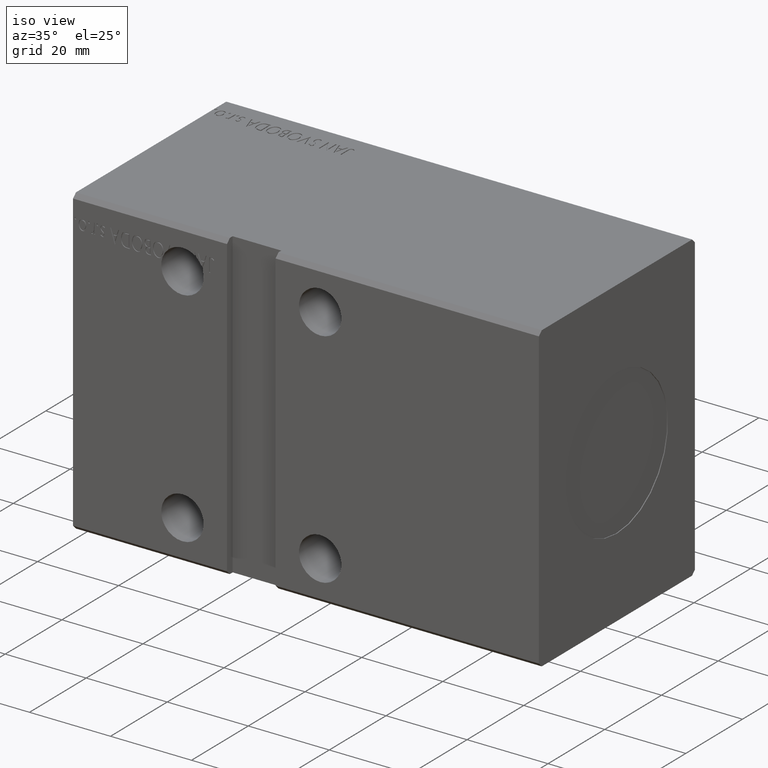
[diagram: clean part render]
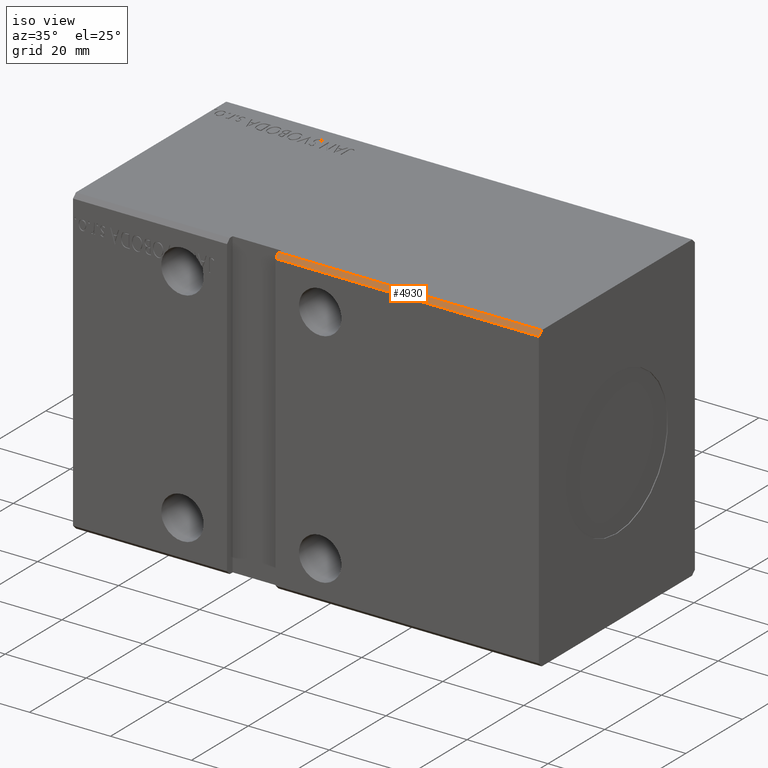
[diagram: same view with one face highlighted and labeled with its STEP entity id]
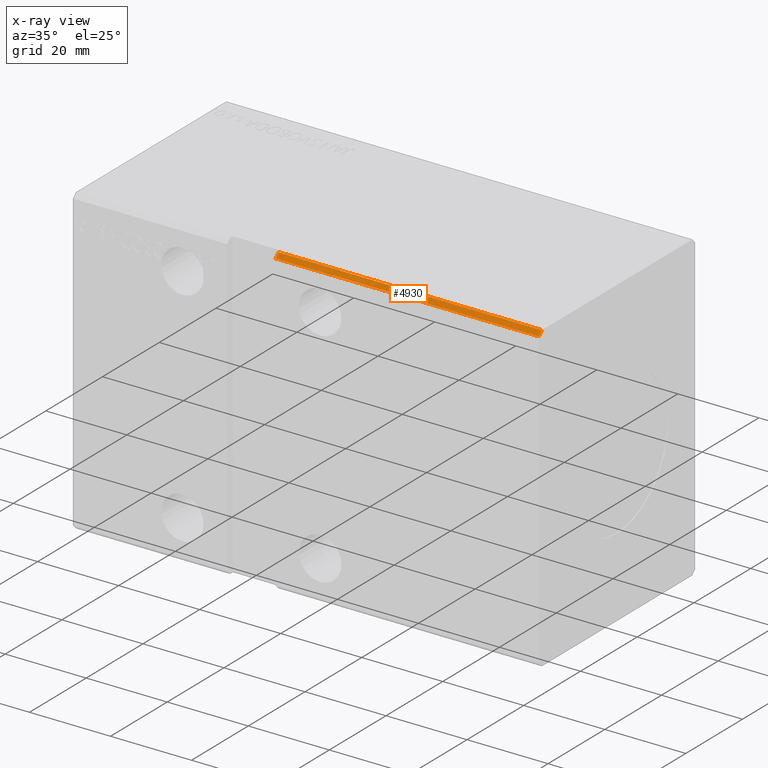
[diagram: x-ray of the same camera — body ghosted, the highlighted face saturated]
A machine part, iso view. The second image highlights one B-rep face of the part: STEP entity #4930.
The next image is the same camera in x-ray: the body ghosted, the highlighted face saturated — about 0% of this face is hidden behind the body in this view.
In plain terms, the highlighted planar face has unit normal (0, 0.7071, -0.7071).
Its self-contained STEP definition (entity closure, byte-faithful):
#1510 = DIRECTION ( 'NONE',  ( 1.308410382236479018E-16, -0.7071067811865474617, -0.7071067811865474617 ) ) ;
#1710 = CARTESIAN_POINT ( 'NONE',  ( 50.00000000000000000, -26.50000000000001421, 37.50000000000000000 ) ) ;
#2377 = VECTOR ( 'NONE', #29346, 1000.000000000000000 ) ;
#2452 = ORIENTED_EDGE ( 'NONE', *, *, #36802, .T. ) ;
#2813 = EDGE_CURVE ( 'NONE', #13157, #36815, #28640, .T. ) ;
#4426 = VECTOR ( 'NONE', #8404, 1000.000000000000000 ) ;
#4544 = LINE ( 'NONE', #16700, #8128 ) ;
#4930 = ADVANCED_FACE ( 'NONE', ( #29349 ), #8408, .F. ) ;
#6430 = ORIENTED_EDGE ( 'NONE', *, *, #14968, .F. ) ;
#7615 = CARTESIAN_POINT ( 'NONE',  ( 115.0000000000000000, -26.50000000000000711, 37.50000000000000711 ) ) ;
#8128 = VECTOR ( 'NONE', #23475, 1000.000000000000114 ) ;
#8404 = DIRECTION ( 'NONE',  ( -1.000000000000000000, -0.000000000000000000, -0.000000000000000000 ) ) ;
#8408 = PLANE ( 'NONE',  #36105 ) ;
#13157 = VERTEX_POINT ( 'NONE', #15522 ) ;
#14821 = VERTEX_POINT ( 'NONE', #20570 ) ;
#14968 = EDGE_CURVE ( 'NONE', #14821, #36815, #35720, .T. ) ;
#15522 = CARTESIAN_POINT ( 'NONE',  ( 49.99999999999999289, -26.50000000000000711, 37.50000000000000711 ) ) ;
#16700 = CARTESIAN_POINT ( 'NONE',  ( 115.0000000000000000, -26.50000000000000711, 37.50000000000000711 ) ) ;
#17774 = DIRECTION ( 'NONE',  ( 0.000000000000000000, 0.7071067811865474617, 0.7071067811865474617 ) ) ;
#17973 = DIRECTION ( 'NONE',  ( 0.000000000000000000, 0.7071067811865475727, -0.7071067811865475727 ) ) ;
#19978 = ORIENTED_EDGE ( 'NONE', *, *, #38683, .F. ) ;
#20570 = CARTESIAN_POINT ( 'NONE',  ( 115.0000000000000000, -27.50000000000000711, 36.50000000000000711 ) ) ;
#20575 = CARTESIAN_POINT ( 'NONE',  ( 115.0000000000000000, -26.50000000000000711, 37.50000000000000711 ) ) ;
#23048 = CARTESIAN_POINT ( 'NONE',  ( 115.0000000000000000, -26.50000000000000711, 37.50000000000000711 ) ) ;
#23475 = DIRECTION ( 'NONE',  ( 0.000000000000000000, -0.7071067811865474617, -0.7071067811865474617 ) ) ;
#26745 = CARTESIAN_POINT ( 'NONE',  ( 115.0000000000000000, -27.50000000000000711, 36.50000000000000711 ) ) ;
#27117 = EDGE_LOOP ( 'NONE', ( #2452, #30249, #6430, #19978 ) ) ;
#28640 = LINE ( 'NONE', #1710, #35451 ) ;
#28704 = VERTEX_POINT ( 'NONE', #23048 ) ;
#29346 = DIRECTION ( 'NONE',  ( -1.000000000000000000, -0.000000000000000000, -0.000000000000000000 ) ) ;
#29349 = FACE_OUTER_BOUND ( 'NONE', #27117, .T. ) ;
#29735 = LINE ( 'NONE', #7615, #2377 ) ;
#30249 = ORIENTED_EDGE ( 'NONE', *, *, #2813, .T. ) ;
#32525 = CARTESIAN_POINT ( 'NONE',  ( 49.99999999999999289, -27.50000000000000711, 36.50000000000000711 ) ) ;
#35451 = VECTOR ( 'NONE', #1510, 1000.000000000000114 ) ;
#35720 = LINE ( 'NONE', #26745, #4426 ) ;
#36105 = AXIS2_PLACEMENT_3D ( 'NONE', #20575, #17973, #17774 ) ;
#36802 = EDGE_CURVE ( 'NONE', #28704, #13157, #29735, .T. ) ;
#36815 = VERTEX_POINT ( 'NONE', #32525 ) ;
#38683 = EDGE_CURVE ( 'NONE', #28704, #14821, #4544, .T. ) ;